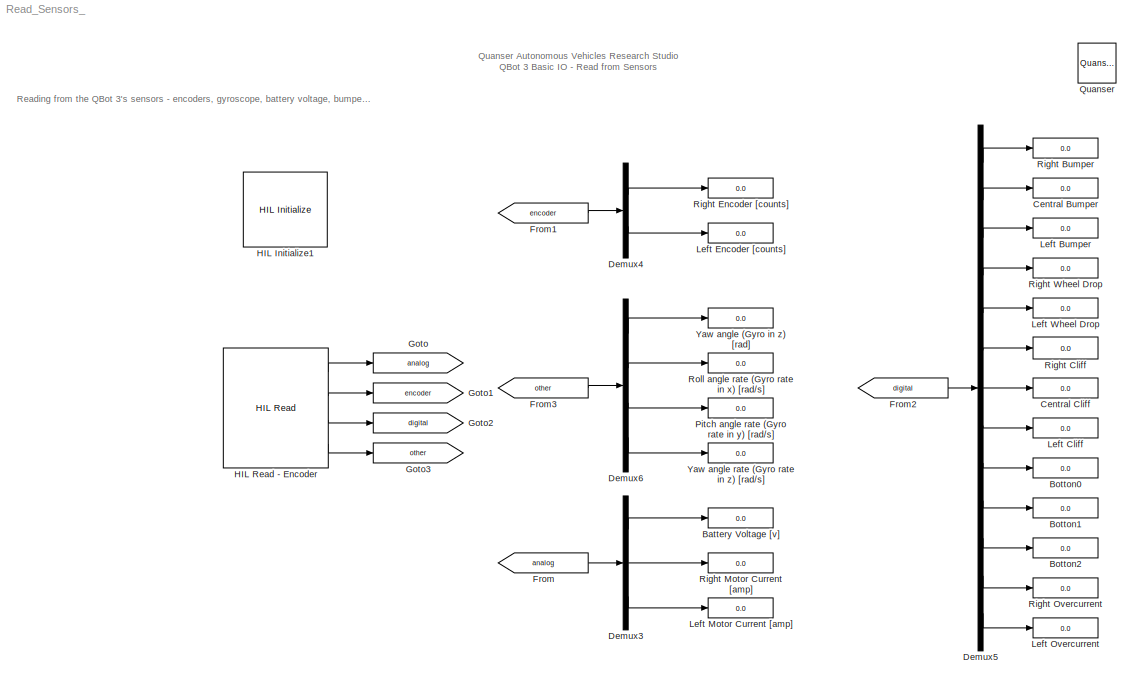
MODEL Read_Sensors_
KIND model
BLOCK [Display] Battery Voltage [v]
  Decimation = 20
  Ports = [1]
  SID = 282
BLOCK [Display] Botton0
  Decimation = 20
  Ports = [1]
  SID = 291
BLOCK [Display] Botton1
  Decimation = 20
  Ports = [1]
  SID = 292
BLOCK [Display] Botton2
  Decimation = 20
  Ports = [1]
  SID = 293
BLOCK [Display] Central Bumper
  Decimation = 20
  Ports = [1]
  SID = 294
BLOCK [Display] Central Cliff
  Decimation = 20
  Ports = [1]
  SID = 295
BLOCK [Demux] Demux3
  Outputs = 3
  Ports = [1, 3]
  SID = 283
BLOCK [Demux] Demux4
  Outputs = 2
  Ports = [1, 2]
  SID = 287
BLOCK [Demux] Demux5
  Outputs = 13
  Ports = [1, 13]
  SID = 296
BLOCK [Demux] Demux6
  Ports = [1, 4]
  SID = 306
BLOCK [From] From
  GotoTag = analog
  SID = 327
BLOCK [From] From1
  GotoTag = encoder
  SID = 328
BLOCK [From] From2
  GotoTag = digital
  SID = 329
BLOCK [From] From3
  GotoTag = other
  SID = 330
BLOCK [Goto] Goto
  GotoTag = analog
  SID = 323
BLOCK [Goto] Goto1
  GotoTag = encoder
  SID = 324
BLOCK [Goto] Goto2
  GotoTag = digital
  SID = 325
BLOCK [Goto] Goto3
  GotoTag = other
  SID = 326
BLOCK [Reference] HIL Initialize1  REF=quarc_library/Data Acquisition/Generic/Configuration/HIL Initialize
  AttributesFormatString = %<object_name> (%<board_type>-%<board_number>)
  MultiThreadCoSim = auto
  Ports = []
  Priority = -99
  SID = 322
  SourceBlock = quarc_library/Data Acquisition/Generic/Configuration/HIL Initialize
  SourceProductName = QUARC Targets
  SourceType = HIL Initialize
  UserData = DataTag0
  UserDataPersistent = on
  active = off
  analog_input_channels = [0:5]
  analog_input_configurations = []
  analog_input_maximums = [16.5 3.3 3.3 3.3 3.3 3.3]
  analog_input_minimums = [0 0 0 0 0 0]
  analog_output_channels = []
  analog_output_maximums = []
  analog_output_minimums = []
  board_number = 0
  board_options = pwm0_en=1;pwm0_pin=12;pwm1_en=1;pwm1_pin=13;
  board_type = qbot3
  clock_modes = []
  digital_input_channels = [28:58]
  digital_output_channels = [28:31]
  digital_output_configuration = []
  encoder_channels = [0:1]
  encoder_filter_frequency = []
  exclusive = off
  final_analog_outputs = []
  final_digital_outputs = [0]
  final_other_outputs = [0 0 0 7]
  final_pwm_outputs = [0]
  hardware_clocks = []
  initial_analog_outputs = []
  initial_clock_frequencies = []
  initial_digital_outputs = [0]
  initial_encoder_counts = [0]
  initial_other_outputs = [0 0 0 7]
  initial_pwm_outputs = [0]
  object_name = HIL-1
  other_output_channels = [2000:2001 14000 16000]
  pwm_alignment = [0]
  pwm_channels = [0:1]
  pwm_configuration = [0]
  pwm_frequency = 100e6 / 4095
  pwm_leading_deadband = []
  pwm_modes = 0
  pwm_polarity = [1]
  pwm_trailing_deadband = []
  quadrature = [4]
  set_analog_input_params_at_start = off
  set_analog_input_params_at_switch_in = off
  set_analog_output_params_at_start = off
  set_analog_output_params_at_switch_in = off
  set_analog_outputs_at_start = off
  set_analog_outputs_at_switch_in = off
  set_analog_outputs_at_switch_out = off
  set_analog_outputs_at_terminate = off
  set_analog_outputs_on_watchdog = off
  set_clock_frequencies_at_start = off
  set_clock_frequencies_at_switch_in = off
  set_clock_params_at_start = off
  set_clock_params_at_switch_in = off
  set_digital_output_params_at_start = off
  set_digital_output_params_at_switch_in = off
  set_digital_outputs_at_start = on
  set_digital_outputs_at_switch_in = off
  set_digital_outputs_at_switch_out = off
  set_digital_outputs_at_terminate = on
  set_digital_outputs_on_watchdog = off
  set_encoder_counts_at_start = on
  set_encoder_counts_at_switch_in = off
  set_encoder_params_at_start = on
  set_encoder_params_at_switch_in = off
  set_other_outputs_at_start = on
  set_other_outputs_at_switch_in = off
  set_other_outputs_at_switch_out = off
  set_other_outputs_at_terminate = on
  set_other_outputs_on_watchdog = off
  set_pwm_outputs_at_start = on
  set_pwm_outputs_at_switch_in = off
  set_pwm_outputs_at_switch_out = off
  set_pwm_outputs_at_terminate = on
  set_pwm_outputs_on_watchdog = off
  set_pwm_params_at_start = on
  set_pwm_params_at_switch_in = off
  watchdog_analog_outputs = []
  watchdog_digital_outputs = []
  watchdog_other_outputs = []
  watchdog_pwm_outputs = []
BLOCK [Reference] HIL Read - Encoder  REF=quarc_library/Data Acquisition/Generic/Immediate I//O/HIL Read
  AttributesFormatString = (%<object_name>)
  MultiThreadCoSim = auto
  Ports = [0, 4]
  SID = 286
  SourceBlock = quarc_library/Data Acquisition/Generic/Immediate I//O/HIL Read
  SourceProductName = QUARC Targets
  SourceType = HIL Read
  UserData = DataTag1
  UserDataPersistent = on
  active = on
  analog_channels = [0 4:5]
  data_type_mode = Inherit via back propagation
  digital_channels = [28:40]
  digital_data_type = boolean
  encoder_channels = [0:1]
  encoder_data_type = double
  object_name = HIL-1
  other_channels = [1002 3000:3002]
  sample_time = qc_get_step_size
  vector_output = on
BLOCK [Display] Left Bumper
  Decimation = 20
  Ports = [1]
  SID = 297
BLOCK [Display] Left Cliff
  Decimation = 20
  Ports = [1]
  SID = 298
BLOCK [Display] Left Encoder [counts]
  Decimation = 20
  Ports = [1]
  SID = 288
BLOCK [Display] Left Motor Current [amp]
  Decimation = 20
  Ports = [1]
  SID = 284
BLOCK [Display] Left Overcurrent
  Decimation = 20
  Ports = [1]
  SID = 299
BLOCK [Display] Left Wheel Drop
  Decimation = 20
  Ports = [1]
  SID = 300
BLOCK [Display] Pitch angle rate (Gyro rate in y) [rad//s]
  Decimation = 20
  Ports = [1]
  SID = 310
BLOCK [Reference] Quanser  REF=quarc_library/Logos/Quanser
  Ports = []
  RTWMemSecDataConstants = Inherit from model
  RTWMemSecDataInternal = Inherit from model
  RTWMemSecDataParameters = Inherit from model
  RTWMemSecFuncExecute = Inherit from model
  RTWMemSecFuncInitTerm = Inherit from model
  SID = 318
  SourceBlock = quarc_library/Logos/Quanser
  SourceProductName = QUARC Targets
  SourceType = Powered by Quanser
BLOCK [Display] Right Bumper
  Decimation = 20
  Ports = [1]
  SID = 301
BLOCK [Display] Right Cliff
  Decimation = 20
  Ports = [1]
  SID = 302
BLOCK [Display] Right Encoder [counts]
  Decimation = 20
  Ports = [1]
  SID = 289
BLOCK [Display] Right Motor Current [amp]
  Decimation = 20
  Ports = [1]
  SID = 285
BLOCK [Display] Right Overcurrent
  Decimation = 20
  Ports = [1]
  SID = 303
BLOCK [Display] Right Wheel Drop
  Decimation = 20
  Ports = [1]
  SID = 304
BLOCK [Display] Roll angle rate (Gyro rate in x) [rad//s]
  Decimation = 20
  Ports = [1]
  SID = 309
BLOCK [Display] Yaw angle (Gyro in z) [rad]
  Decimation = 20
  Ports = [1]
  SID = 308
BLOCK [Display] Yaw angle rate (Gyro rate in z) [rad//s]
  Decimation = 20
  Ports = [1]
  SID = 311
ANNOTATION (root): \n \n Quanser Autonomous Vehicles Research Studio QBot 3 Basic IO - Read from Sensors
ANNOTATION (root): Reading from the QBot 3's sensors - encoders, gyroscope, battery voltage, bumpers, buttons, etc.
LINE Demux3:1 -> Battery Voltage [v]:1
LINE Demux3:2 -> Right Motor Current [amp]:1
LINE Demux3:3 -> Left Motor Current [amp]:1
LINE Demux4:1 -> Right Encoder [counts]:1
LINE Demux4:2 -> Left Encoder [counts]:1
LINE Demux5:1 -> Right Bumper:1
LINE Demux5:10 -> Botton1:1
LINE Demux5:11 -> Botton2:1
LINE Demux5:12 -> Right Overcurrent:1
LINE Demux5:13 -> Left Overcurrent:1
LINE Demux5:2 -> Central Bumper:1
LINE Demux5:3 -> Left Bumper:1
LINE Demux5:4 -> Right Wheel Drop:1
LINE Demux5:5 -> Left Wheel Drop:1
LINE Demux5:6 -> Right Cliff:1
LINE Demux5:7 -> Central Cliff:1
LINE Demux5:8 -> Left Cliff:1
LINE Demux5:9 -> Botton0:1
LINE Demux6:1 -> Yaw angle (Gyro in z) [rad]:1
LINE Demux6:2 -> Roll angle rate (Gyro rate in x) [rad//s]:1
LINE Demux6:3 -> Pitch angle rate (Gyro rate in y) [rad//s]:1
LINE Demux6:4 -> Yaw angle rate (Gyro rate in z) [rad//s]:1
LINE From1:1 -> Demux4:1
LINE From2:1 -> Demux5:1
LINE From3:1 -> Demux6:1
LINE From:1 -> Demux3:1
LINE HIL Read - Encoder:1 -> Goto:1
LINE HIL Read - Encoder:2 -> Goto1:1
LINE HIL Read - Encoder:3 -> Goto2:1
LINE HIL Read - Encoder:4 -> Goto3:1
